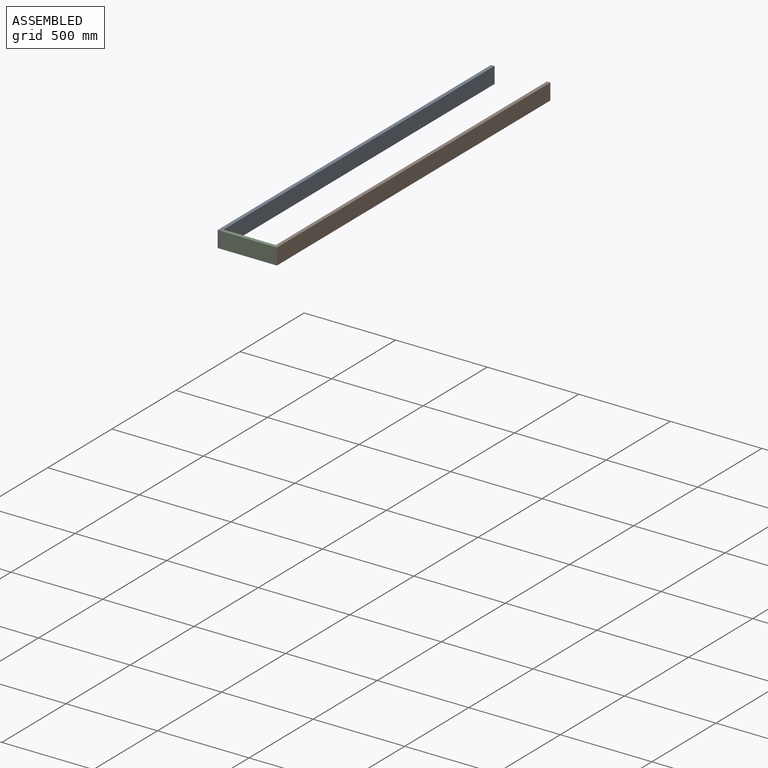
[diagram: assembled view]
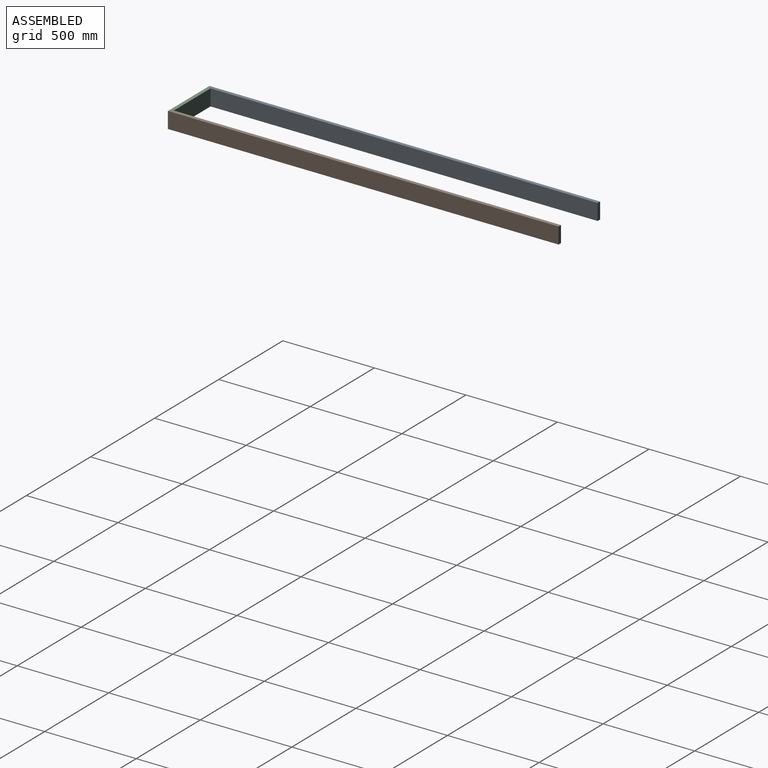
[diagram: assembled view, second angle]
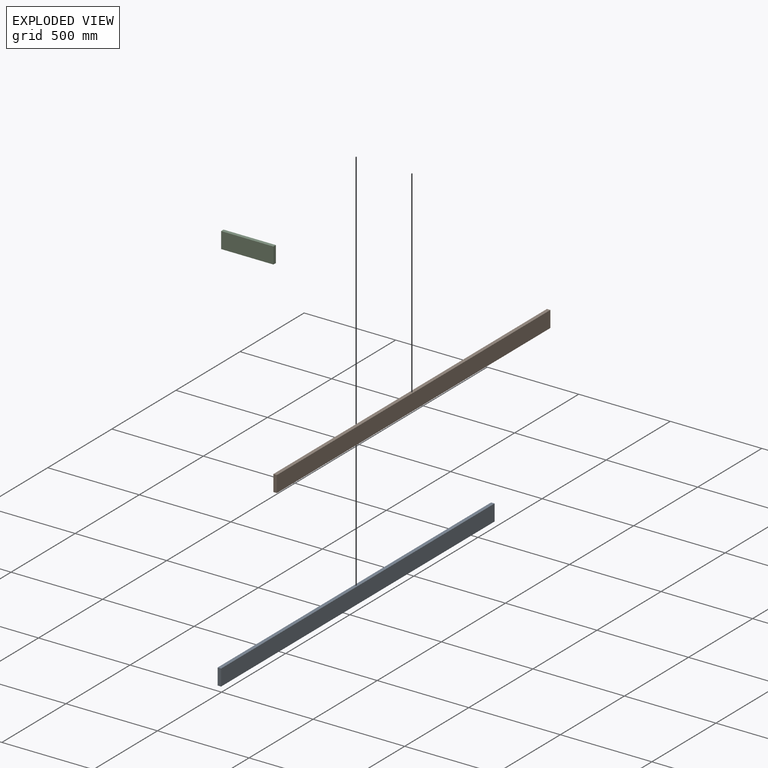
[diagram: exploded view]
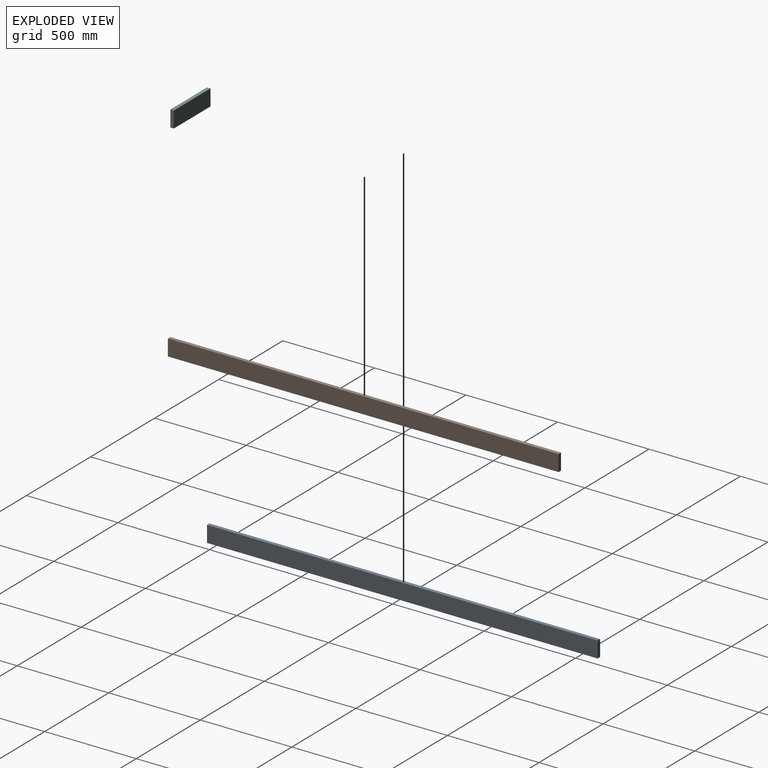
[diagram: exploded view, second angle]
ASSEMBLY  parts=3 mates=2
PART A: 6 faces, bbox 19.1x2133.6x88.9 mm
  f0: plane 2133.6x19.05mm, normal (0,0,1), area 40645.1mm2, adj f1,f3,f4,f5
  f1: plane 2133.6x88.9mm, normal (-1,0,0), area 189677mm2, adj f0,f2,f4,f5
  f2: plane 2133.6x19.05mm, normal (0,0,-1), area 40645.1mm2, adj f1,f3,f4,f5
  f3: plane 2133.6x88.9mm, normal (1,0,0), area 189677mm2, adj f0,f2,f4,f5
  f4: plane 88.9x19.05mm, normal (0,1,0), area 1693.5mm2, adj f0,f1,f2,f3
  f5: plane 88.9x19.05mm, normal (0,-1,0), area 1693.5mm2, adj f0,f1,f2,f3
PART B: same geometry as A
PART C: 6 faces, bbox 285.8x19.1x88.9 mm
  f0: plane 285.75x19.05mm, normal (0,0,1), area 5443.5mm2, adj f1,f3,f4,f5
  f1: plane 285.75x88.9mm, normal (0,-1,0), area 25403.2mm2, adj f0,f2,f4,f5
  f2: plane 285.75x19.05mm, normal (0,0,-1), area 5443.5mm2, adj f1,f3,f4,f5
  f3: plane 285.75x88.9mm, normal (0,1,0), area 25403.2mm2, adj f0,f2,f4,f5
  f4: plane 88.9x19.05mm, normal (1,0,0), area 1693.5mm2, adj f0,f1,f2,f3
  f5: plane 88.9x19.05mm, normal (-1,0,0), area 1693.5mm2, adj f0,f1,f2,f3
PLACE A t=(-4.99,-10.24,-42.81)mm
PLACE B t=(299.81,-10.24,-42.81)mm
PLACE C t=(4.54,-10.24,-62.08)mm
MATE fastened B.f2 <-> C.f2  axis (0,0,1) through (290.29,-10.24,-87.26)mm
MATE fastened C.f0 <-> A.f0  axis (0,0,1) through (4.54,-10.24,1.64)mm
